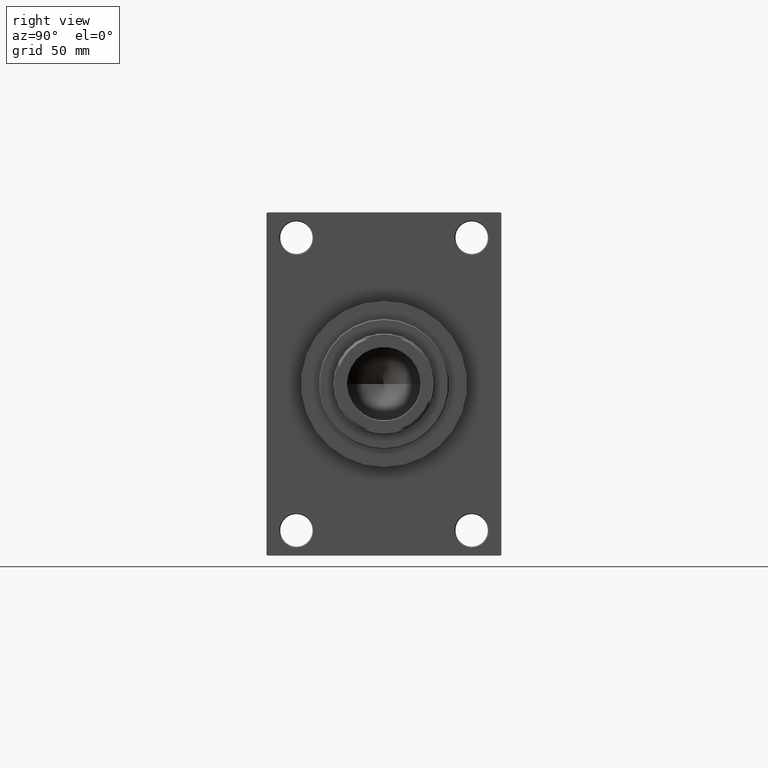
[diagram: clean part render]
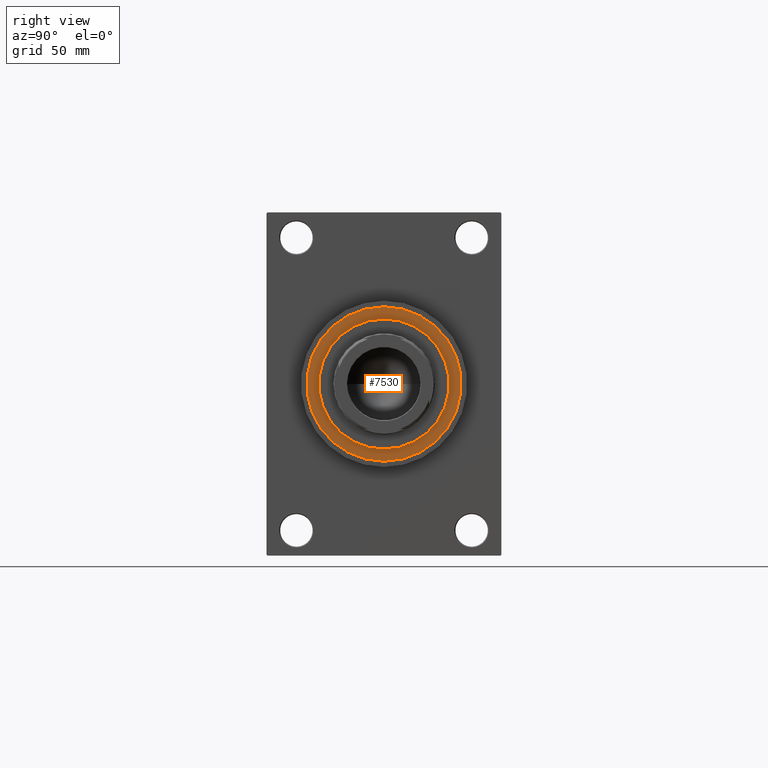
[diagram: same view with one face highlighted and labeled with its STEP entity id]
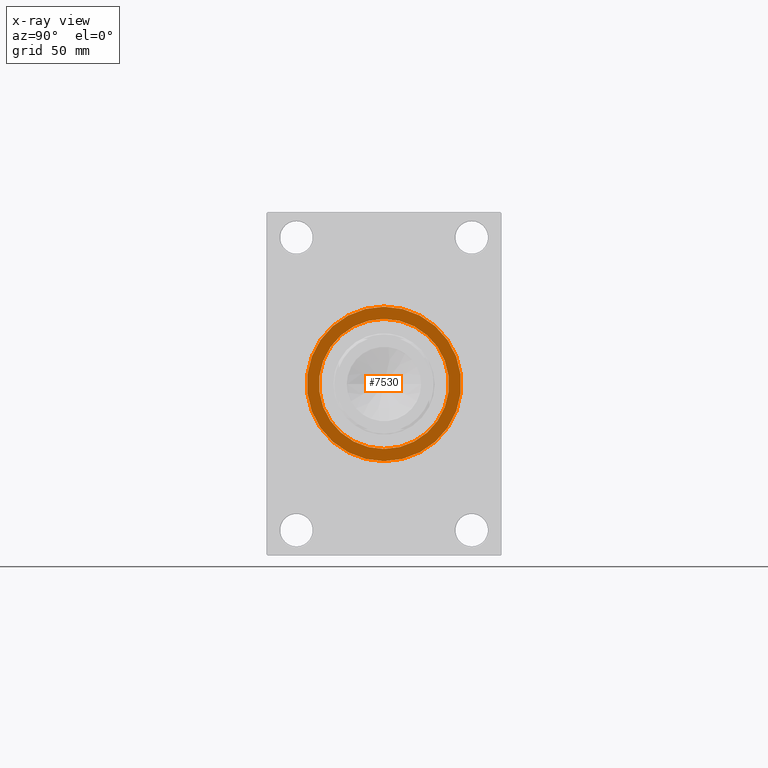
[diagram: x-ray of the same camera — body ghosted, the highlighted face saturated]
A machine part, right view. The second image highlights one B-rep face of the part: STEP entity #7530.
The next image is the same camera in x-ray: the body ghosted, the highlighted face saturated — about 0% of this face is hidden behind the body in this view.
In plain terms, the highlighted planar face has unit normal (1, -0, -0).
Its self-contained STEP definition (entity closure, byte-faithful):
#263 = VERTEX_POINT ( 'NONE', #1055 ) ;
#485 = CARTESIAN_POINT ( 'NONE',  ( 0.000000000000000000, 0.000000000000000000, 43.25999999999999801 ) ) ;
#558 = CARTESIAN_POINT ( 'NONE',  ( 0.000000000000000000, 0.000000000000000000, 43.25999999999999801 ) ) ;
#789 = DIRECTION ( 'NONE',  ( 1.000000000000000000, 0.000000000000000000, 0.000000000000000000 ) ) ;
#836 = ORIENTED_EDGE ( 'NONE', *, *, #12271, .T. ) ;
#1055 = CARTESIAN_POINT ( 'NONE',  ( 36.00000000000000000, 4.408728476930470856E-15, 43.25999999999999801 ) ) ;
#2428 = EDGE_LOOP ( 'NONE', ( #41180, #836 ) ) ;
#4653 = EDGE_CURVE ( 'NONE', #29549, #29465, #37163, .T. ) ;
#6037 = DIRECTION ( 'NONE',  ( 0.000000000000000000, 0.000000000000000000, 1.000000000000000000 ) ) ;
#7502 = FACE_BOUND ( 'NONE', #30897, .T. ) ;
#7530 = ADVANCED_FACE ( 'NONE', ( #7502, #41530 ), #26325, .T. ) ;
#10977 = AXIS2_PLACEMENT_3D ( 'NONE', #558, #44255, #789 ) ;
#12271 = EDGE_CURVE ( 'NONE', #29465, #29549, #42709, .T. ) ;
#13325 = AXIS2_PLACEMENT_3D ( 'NONE', #39102, #6037, #17377 ) ;
#15205 = DIRECTION ( 'NONE',  ( 1.000000000000000000, 0.000000000000000000, 0.000000000000000000 ) ) ;
#15447 = DIRECTION ( 'NONE',  ( 0.000000000000000000, 0.000000000000000000, 1.000000000000000000 ) ) ;
#15587 = DIRECTION ( 'NONE',  ( 0.000000000000000000, 0.000000000000000000, 1.000000000000000000 ) ) ;
#17377 = DIRECTION ( 'NONE',  ( 1.000000000000000000, 0.000000000000000000, 0.000000000000000000 ) ) ;
#19878 = EDGE_CURVE ( 'NONE', #263, #40953, #39545, .T. ) ;
#19890 = CARTESIAN_POINT ( 'NONE',  ( -36.00000000000000000, 0.000000000000000000, 43.25999999999999801 ) ) ;
#20120 = ORIENTED_EDGE ( 'NONE', *, *, #25214, .F. ) ;
#21027 = AXIS2_PLACEMENT_3D ( 'NONE', #33563, #15447, #25850 ) ;
#24774 = CARTESIAN_POINT ( 'NONE',  ( -42.75000000000000000, 0.000000000000000000, 43.25999999999999801 ) ) ;
#25214 = EDGE_CURVE ( 'NONE', #40953, #263, #29592, .T. ) ;
#25850 = DIRECTION ( 'NONE',  ( 1.000000000000000000, 0.000000000000000000, -0.000000000000000000 ) ) ;
#26038 = ORIENTED_EDGE ( 'NONE', *, *, #19878, .F. ) ;
#26325 = PLANE ( 'NONE',  #21027 ) ;
#26516 = AXIS2_PLACEMENT_3D ( 'NONE', #485, #29205, #15205 ) ;
#29205 = DIRECTION ( 'NONE',  ( 0.000000000000000000, 0.000000000000000000, 1.000000000000000000 ) ) ;
#29465 = VERTEX_POINT ( 'NONE', #45164 ) ;
#29549 = VERTEX_POINT ( 'NONE', #24774 ) ;
#29592 = CIRCLE ( 'NONE', #26516, 36.00000000000000000 ) ;
#30897 = EDGE_LOOP ( 'NONE', ( #20120, #26038 ) ) ;
#33563 = CARTESIAN_POINT ( 'NONE',  ( 0.000000000000000000, 0.000000000000000000, 43.25999999999999801 ) ) ;
#37163 = CIRCLE ( 'NONE', #10977, 42.75000000000000000 ) ;
#39102 = CARTESIAN_POINT ( 'NONE',  ( 0.000000000000000000, 0.000000000000000000, 43.25999999999999801 ) ) ;
#39545 = CIRCLE ( 'NONE', #13325, 36.00000000000000000 ) ;
#40953 = VERTEX_POINT ( 'NONE', #19890 ) ;
#41171 = AXIS2_PLACEMENT_3D ( 'NONE', #41187, #15587, #42141 ) ;
#41180 = ORIENTED_EDGE ( 'NONE', *, *, #4653, .T. ) ;
#41187 = CARTESIAN_POINT ( 'NONE',  ( 0.000000000000000000, 0.000000000000000000, 43.25999999999999801 ) ) ;
#41530 = FACE_OUTER_BOUND ( 'NONE', #2428, .T. ) ;
#42141 = DIRECTION ( 'NONE',  ( 1.000000000000000000, 0.000000000000000000, 0.000000000000000000 ) ) ;
#42709 = CIRCLE ( 'NONE', #41171, 42.75000000000000000 ) ;
#44255 = DIRECTION ( 'NONE',  ( 0.000000000000000000, 0.000000000000000000, 1.000000000000000000 ) ) ;
#45164 = CARTESIAN_POINT ( 'NONE',  ( 42.75000000000000000, 5.235365066354935472E-15, 43.25999999999999801 ) ) ;